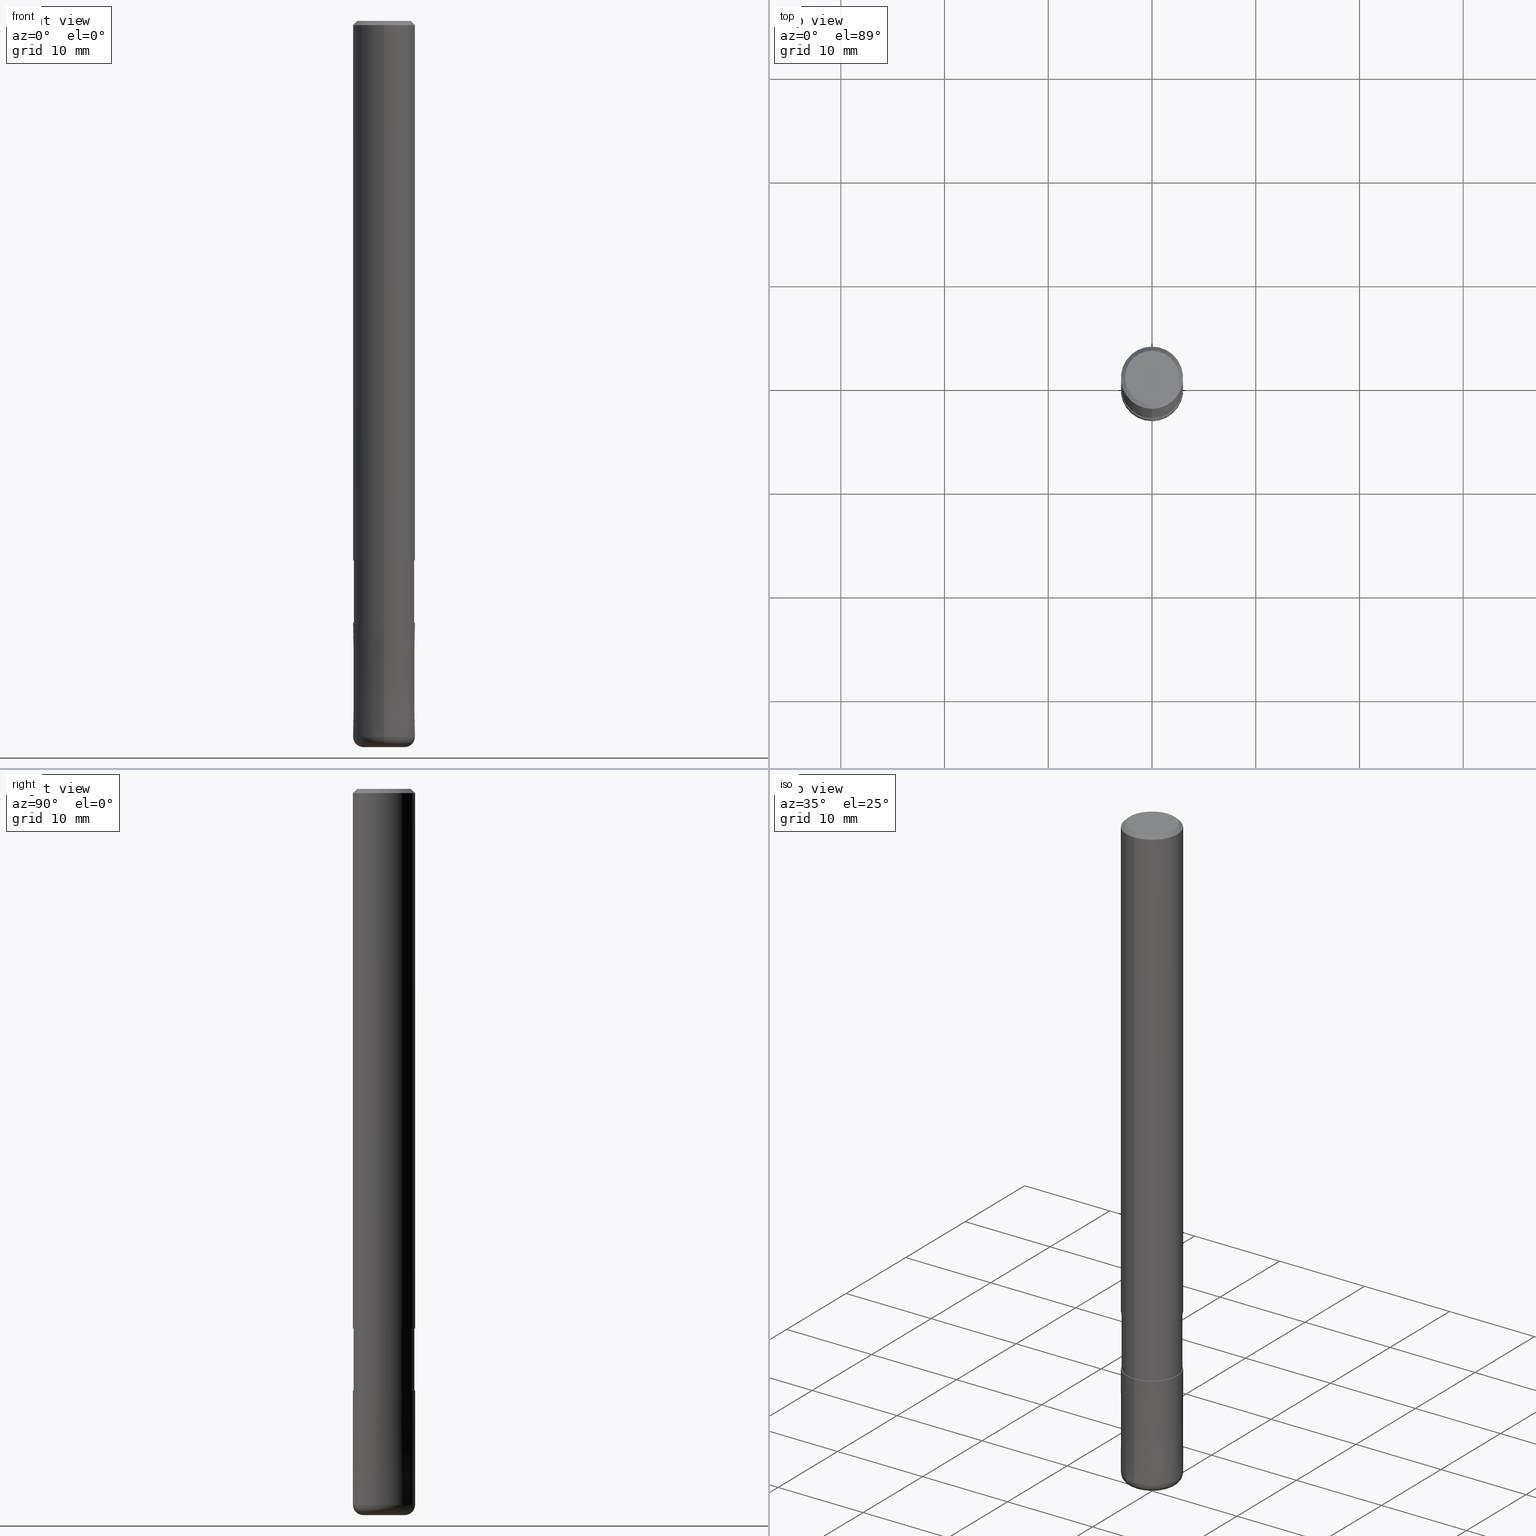
[diagram: canonical four-view strip — front | top / right | iso, engineering-drawing reading convention]
A machine part, canonical four-view strip (front | top / right | iso — engineering-drawing reading convention). The complete STEP part file that produces these views, byte-faithful:
ISO-10303-21;
HEADER;
FILE_DESCRIPTION(('no description'),'unknown implementation level');
FILE_NAME('CXLRS5060-10-18-Huellk.stp','  ',('CIMSOURCE GmbH'),('CADClick - KiM GmbH - www.kimweb.de'),'unknown preprocess','ACIS','unknown authorization');
FILE_SCHEMA(('automotive_design'));
ENDSEC;
DATA;
#1=MECHANICAL_DESIGN_GEOMETRIC_PRESENTATION_REPRESENTATION(' ',(#14,#15,#16,#17,#18,#19,#20,#21,#22,#23,#24,#25,#26,#27,#28,#29,#30,#31,#32,#33,#34,#35,#36,#37,#38,#39,#40,#41,#42,#43,#44,#45,#46,#47,#48,#49,#50,#51,#52,#53,#54,#55,#56,#57,#58,#59,#60,#61,#62,#63,#64,#65,#66,#67,#68,#69,#70,#71,#72,#73,#74,#75,#76,#77,#78,#79,#80,#81,#82,#83,#84,#85,#86,#87,#88,#89,#90,#91,#92,#93,#94,#95,#96,#97),#10);
#2=PRODUCT_DEFINITION_CONTEXT('',#98,'design');
#3=APPLICATION_PROTOCOL_DEFINITION('INTERNATIONAL STANDARD','automotive_design',1994,#98);
#4=PRODUCT_CATEGORY_RELATIONSHIP('NONE','NONE',#99,#100);
#5=SHAPE_DEFINITION_REPRESENTATION(#101,#102);
#6=PRODUCT_DEFINITION_CONTEXT('',#103,'design');
#7=APPLICATION_PROTOCOL_DEFINITION('INTERNATIONAL STANDARD','automotive_design',1994,#103);
#8=PRODUCT_CATEGORY_RELATIONSHIP('NONE','NONE',#104,#105);
#9=SHAPE_DEFINITION_REPRESENTATION(#106,#107);
#10= (GEOMETRIC_REPRESENTATION_CONTEXT(3)GLOBAL_UNCERTAINTY_ASSIGNED_CONTEXT((#110))GLOBAL_UNIT_ASSIGNED_CONTEXT((#112,#113,#114))REPRESENTATION_CONTEXT('NONE','WORKSPACE'));
#14=STYLED_ITEM('',(#116),#117);
#15=STYLED_ITEM('',(#118),#119);
#16=STYLED_ITEM('',(#120),#121);
#17=STYLED_ITEM('',(#122),#123);
#18=STYLED_ITEM('',(#124),#125);
#19=STYLED_ITEM('',(#126),#127);
#20=STYLED_ITEM('',(#128),#129);
#21=STYLED_ITEM('',(#130),#131);
#22=STYLED_ITEM('',(#132),#133);
#23=STYLED_ITEM('',(#134),#135);
#24=STYLED_ITEM('',(#136),#137);
#25=STYLED_ITEM('',(#138),#139);
#26=STYLED_ITEM('',(#140),#141);
#27=STYLED_ITEM('',(#142),#143);
#28=STYLED_ITEM('',(#144),#145);
#29=STYLED_ITEM('',(#146),#147);
#30=STYLED_ITEM('',(#148),#149);
#31=STYLED_ITEM('',(#150),#151);
#32=STYLED_ITEM('',(#152),#153);
#33=STYLED_ITEM('',(#154),#155);
#34=STYLED_ITEM('',(#156),#157);
#35=STYLED_ITEM('',(#158),#159);
#36=STYLED_ITEM('',(#160),#161);
#37=STYLED_ITEM('',(#162),#163);
#38=STYLED_ITEM('',(#164),#165);
#39=STYLED_ITEM('',(#166),#167);
#40=STYLED_ITEM('',(#168),#169);
#41=STYLED_ITEM('',(#170),#171);
#42=STYLED_ITEM('',(#172),#173);
#43=STYLED_ITEM('',(#174),#175);
#44=STYLED_ITEM('',(#176),#177);
#45=STYLED_ITEM('',(#178),#179);
#46=STYLED_ITEM('',(#180),#181);
#47=STYLED_ITEM('',(#182),#183);
#48=STYLED_ITEM('',(#184),#185);
#49=STYLED_ITEM('',(#186),#187);
#50=STYLED_ITEM('',(#188),#189);
#51=STYLED_ITEM('',(#190),#191);
#52=STYLED_ITEM('',(#192),#193);
#53=STYLED_ITEM('',(#194),#195);
#54=STYLED_ITEM('',(#196),#197);
#55=STYLED_ITEM('',(#198),#199);
#56=STYLED_ITEM('',(#200),#201);
#57=STYLED_ITEM('',(#202),#203);
#58=STYLED_ITEM('',(#204),#205);
#59=STYLED_ITEM('',(#206),#207);
#60=STYLED_ITEM('',(#208),#209);
#61=STYLED_ITEM('',(#210),#211);
#62=STYLED_ITEM('',(#212),#213);
#63=STYLED_ITEM('',(#214),#215);
#64=STYLED_ITEM('',(#216),#217);
#65=STYLED_ITEM('',(#218),#219);
#66=STYLED_ITEM('',(#220),#221);
#67=STYLED_ITEM('',(#222),#223);
#68=STYLED_ITEM('',(#224),#225);
#69=STYLED_ITEM('',(#226),#227);
#70=STYLED_ITEM('',(#228),#229);
#71=STYLED_ITEM('',(#230),#231);
#72=STYLED_ITEM('',(#232),#233);
#73=STYLED_ITEM('',(#234),#235);
#74=STYLED_ITEM('',(#236),#237);
#75=STYLED_ITEM('',(#238),#239);
#76=STYLED_ITEM('',(#240),#241);
#77=STYLED_ITEM('',(#242),#243);
#78=STYLED_ITEM('',(#244),#245);
#79=STYLED_ITEM('',(#246),#247);
#80=STYLED_ITEM('',(#248),#249);
#81=STYLED_ITEM('',(#250),#251);
#82=STYLED_ITEM('',(#252),#253);
#83=STYLED_ITEM('',(#254),#255);
#84=STYLED_ITEM('',(#256),#257);
#85=STYLED_ITEM('',(#258),#259);
#86=STYLED_ITEM('',(#260),#261);
#87=STYLED_ITEM('',(#262),#263);
#88=STYLED_ITEM('',(#264),#265);
#89=STYLED_ITEM('',(#266),#267);
#90=STYLED_ITEM('',(#268),#269);
#91=STYLED_ITEM('',(#270),#271);
#92=STYLED_ITEM('',(#272),#273);
#93=STYLED_ITEM('',(#274),#275);
#94=STYLED_ITEM('',(#276),#277);
#95=STYLED_ITEM('',(#278),#279);
#96=STYLED_ITEM('',(#280),#281);
#97=STYLED_ITEM('',(#282),#283);
#98=APPLICATION_CONTEXT(' ');
#99=PRODUCT_CATEGORY('part','NONE');
#100=PRODUCT_RELATED_PRODUCT_CATEGORY('detail',' ',(#284));
#101=PRODUCT_DEFINITION_SHAPE('NONE','NONE',#285);
#102=ADVANCED_BREP_SHAPE_REPRESENTATION('1',(#241,#286),#10);
#103=APPLICATION_CONTEXT(' ');
#104=PRODUCT_CATEGORY('part','NONE');
#105=PRODUCT_RELATED_PRODUCT_CATEGORY('detail',' ',(#287));
#106=PRODUCT_DEFINITION_SHAPE('NONE','NONE',#288);
#107=ADVANCED_BREP_SHAPE_REPRESENTATION('2',(#259,#289),#10);
#110=UNCERTAINTY_MEASURE_WITH_UNIT(LENGTH_MEASURE(1.0E-006),#112,'','');
#112= (CONVERSION_BASED_UNIT('MILLIMETRE',#292)LENGTH_UNIT()NAMED_UNIT(#295));
#113= (NAMED_UNIT(#297)PLANE_ANGLE_UNIT()SI_UNIT($,.RADIAN.));
#114= (NAMED_UNIT(#297)SOLID_ANGLE_UNIT()SI_UNIT($,.STERADIAN.));
#116=PRESENTATION_STYLE_ASSIGNMENT((#303));
#117=ADVANCED_FACE('',(#304),#305,.T.);
#118=PRESENTATION_STYLE_ASSIGNMENT((#306));
#119=EDGE_CURVE('',#123,#187,#307,.T.);
#120=PRESENTATION_STYLE_ASSIGNMENT((#308));
#121=ADVANCED_FACE('',(#309),#310,.T.);
#122=PRESENTATION_STYLE_ASSIGNMENT((#311));
#123=VERTEX_POINT('',#312);
#124=PRESENTATION_STYLE_ASSIGNMENT((#313));
#125=ADVANCED_FACE('',(#314),#315,.T.);
#126=PRESENTATION_STYLE_ASSIGNMENT((#316));
#127=ADVANCED_FACE('',(#317),#318,.T.);
#128=PRESENTATION_STYLE_ASSIGNMENT((#319));
#129=EDGE_CURVE('',#223,#247,#320,.T.);
#130=PRESENTATION_STYLE_ASSIGNMENT((#321));
#131=EDGE_CURVE('',#217,#231,#322,.T.);
#132=PRESENTATION_STYLE_ASSIGNMENT((#323));
#133=EDGE_CURVE('',#123,#225,#324,.T.);
#134=PRESENTATION_STYLE_ASSIGNMENT((#325));
#135=EDGE_CURVE('',#153,#211,#326,.T.);
#136=PRESENTATION_STYLE_ASSIGNMENT((#327));
#137=VERTEX_POINT('',#328);
#138=PRESENTATION_STYLE_ASSIGNMENT((#329));
#139=EDGE_CURVE('',#281,#269,#330,.T.);
#140=PRESENTATION_STYLE_ASSIGNMENT((#331));
#141=ADVANCED_FACE('',(#332),#333,.T.);
#142=PRESENTATION_STYLE_ASSIGNMENT((#334));
#143=EDGE_CURVE('',#137,#165,#335,.T.);
#144=PRESENTATION_STYLE_ASSIGNMENT((#336));
#145=ADVANCED_FACE('',(#337),#338,.T.);
#146=PRESENTATION_STYLE_ASSIGNMENT((#339));
#147=ADVANCED_FACE('',(#340,#341),#342,.T.);
#148=PRESENTATION_STYLE_ASSIGNMENT((#343));
#149=VERTEX_POINT('',#344);
#150=PRESENTATION_STYLE_ASSIGNMENT((#345));
#151=VERTEX_POINT('',#346);
#152=PRESENTATION_STYLE_ASSIGNMENT((#347));
#153=VERTEX_POINT('',#348);
#154=PRESENTATION_STYLE_ASSIGNMENT((#349));
#155=EDGE_CURVE('',#279,#149,#350,.T.);
#156=PRESENTATION_STYLE_ASSIGNMENT((#351));
#157=EDGE_CURVE('',#165,#137,#352,.T.);
#158=PRESENTATION_STYLE_ASSIGNMENT((#353));
#159=ADVANCED_FACE('',(#354),#355,.T.);
#160=PRESENTATION_STYLE_ASSIGNMENT((#356));
#161=EDGE_CURVE('',#261,#151,#357,.T.);
#162=PRESENTATION_STYLE_ASSIGNMENT((#358));
#163=EDGE_CURVE('',#149,#279,#359,.T.);
#164=PRESENTATION_STYLE_ASSIGNMENT((#360));
#165=VERTEX_POINT('',#361);
#166=PRESENTATION_STYLE_ASSIGNMENT((#362));
#167=EDGE_CURVE('',#223,#231,#363,.T.);
#168=PRESENTATION_STYLE_ASSIGNMENT((#364));
#169=VERTEX_POINT('',#365);
#170=PRESENTATION_STYLE_ASSIGNMENT((#366));
#171=EDGE_CURVE('',#169,#257,#367,.T.);
#172=PRESENTATION_STYLE_ASSIGNMENT((#368));
#173=EDGE_CURVE('',#151,#261,#369,.T.);
#174=PRESENTATION_STYLE_ASSIGNMENT((#370));
#175=ADVANCED_FACE('',(#371),#372,.F.);
#176=PRESENTATION_STYLE_ASSIGNMENT((#373));
#177=ADVANCED_FACE('',(#374),#375,.T.);
#178=PRESENTATION_STYLE_ASSIGNMENT((#376));
#179=EDGE_CURVE('',#257,#261,#377,.T.);
#180=PRESENTATION_STYLE_ASSIGNMENT((#378));
#181=ADVANCED_FACE('',(#379,#380),#381,.T.);
#182=PRESENTATION_STYLE_ASSIGNMENT((#382));
#183=VERTEX_POINT('',#383);
#184=PRESENTATION_STYLE_ASSIGNMENT((#384));
#185=EDGE_CURVE('',#239,#183,#385,.T.);
#186=PRESENTATION_STYLE_ASSIGNMENT((#386));
#187=VERTEX_POINT('',#387);
#188=PRESENTATION_STYLE_ASSIGNMENT((#388));
#189=EDGE_CURVE('',#247,#223,#389,.T.);
#190=PRESENTATION_STYLE_ASSIGNMENT((#390));
#191=EDGE_CURVE('',#201,#225,#391,.T.);
#192=PRESENTATION_STYLE_ASSIGNMENT((#392));
#193=EDGE_CURVE('',#217,#247,#393,.T.);
#194=PRESENTATION_STYLE_ASSIGNMENT((#394));
#195=ADVANCED_FACE('',(#395),#396,.T.);
#196=PRESENTATION_STYLE_ASSIGNMENT((#397));
#197=ADVANCED_FACE('',(#398),#399,.T.);
#198=PRESENTATION_STYLE_ASSIGNMENT((#400));
#199=ADVANCED_FACE('',(#401,#402),#403,.T.);
#200=PRESENTATION_STYLE_ASSIGNMENT((#404));
#201=VERTEX_POINT('',#405);
#202=PRESENTATION_STYLE_ASSIGNMENT((#406));
#203=VERTEX_POINT('',#407);
#204=PRESENTATION_STYLE_ASSIGNMENT((#408));
#205=EDGE_CURVE('',#203,#225,#409,.T.);
#206=PRESENTATION_STYLE_ASSIGNMENT((#410));
#207=VERTEX_POINT('',#411);
#208=PRESENTATION_STYLE_ASSIGNMENT((#412));
#209=EDGE_CURVE('',#207,#203,#413,.T.);
#210=PRESENTATION_STYLE_ASSIGNMENT((#414));
#211=VERTEX_POINT('',#415);
#212=PRESENTATION_STYLE_ASSIGNMENT((#416));
#213=EDGE_CURVE('',#211,#169,#417,.T.);
#214=PRESENTATION_STYLE_ASSIGNMENT((#418));
#215=EDGE_CURVE('',#153,#257,#419,.T.);
#216=PRESENTATION_STYLE_ASSIGNMENT((#420));
#217=VERTEX_POINT('',#421);
#218=PRESENTATION_STYLE_ASSIGNMENT((#422));
#219=ADVANCED_FACE('',(#423),#424,.F.);
#220=PRESENTATION_STYLE_ASSIGNMENT((#425));
#221=EDGE_CURVE('',#269,#239,#426,.T.);
#222=PRESENTATION_STYLE_ASSIGNMENT((#427));
#223=VERTEX_POINT('',#428);
#224=PRESENTATION_STYLE_ASSIGNMENT((#429));
#225=VERTEX_POINT('',#430);
#226=PRESENTATION_STYLE_ASSIGNMENT((#431));
#227=ADVANCED_FACE('',(#432),#433,.T.);
#228=PRESENTATION_STYLE_ASSIGNMENT((#434));
#229=EDGE_CURVE('',#187,#201,#435,.T.);
#230=PRESENTATION_STYLE_ASSIGNMENT((#436));
#231=VERTEX_POINT('',#437);
#232=PRESENTATION_STYLE_ASSIGNMENT((#438));
#233=ADVANCED_FACE('',(#439),#440,.T.);
#234=PRESENTATION_STYLE_ASSIGNMENT((#441));
#235=EDGE_CURVE('',#149,#137,#442,.T.);
#236=PRESENTATION_STYLE_ASSIGNMENT((#443));
#237=EDGE_CURVE('',#165,#279,#444,.T.);
#238=PRESENTATION_STYLE_ASSIGNMENT((#445));
#239=VERTEX_POINT('',#446);
#240=PRESENTATION_STYLE_ASSIGNMENT((#447));
#241=MANIFOLD_SOLID_BREP('1',#448);
#242=PRESENTATION_STYLE_ASSIGNMENT((#449));
#243=EDGE_CURVE('',#151,#153,#450,.T.);
#244=PRESENTATION_STYLE_ASSIGNMENT((#451));
#245=EDGE_CURVE('',#281,#183,#452,.T.);
#246=PRESENTATION_STYLE_ASSIGNMENT((#453));
#247=VERTEX_POINT('',#454);
#248=PRESENTATION_STYLE_ASSIGNMENT((#455));
#249=EDGE_CURVE('',#239,#269,#456,.T.);
#250=PRESENTATION_STYLE_ASSIGNMENT((#457));
#251=ADVANCED_FACE('',(#458),#459,.T.);
#252=PRESENTATION_STYLE_ASSIGNMENT((#460));
#253=EDGE_CURVE('',#257,#153,#461,.T.);
#254=PRESENTATION_STYLE_ASSIGNMENT((#462));
#255=EDGE_CURVE('',#201,#187,#463,.T.);
#256=PRESENTATION_STYLE_ASSIGNMENT((#464));
#257=VERTEX_POINT('',#465);
#258=PRESENTATION_STYLE_ASSIGNMENT((#466));
#259=MANIFOLD_SOLID_BREP('2',#467);
#260=PRESENTATION_STYLE_ASSIGNMENT((#468));
#261=VERTEX_POINT('',#469);
#262=PRESENTATION_STYLE_ASSIGNMENT((#470));
#263=EDGE_CURVE('',#231,#217,#471,.T.);
#264=PRESENTATION_STYLE_ASSIGNMENT((#472));
#265=EDGE_CURVE('',#225,#123,#473,.T.);
#266=PRESENTATION_STYLE_ASSIGNMENT((#474));
#267=ADVANCED_FACE('',(#475,#476),#477,.T.);
#268=PRESENTATION_STYLE_ASSIGNMENT((#478));
#269=VERTEX_POINT('',#479);
#270=PRESENTATION_STYLE_ASSIGNMENT((#480));
#271=EDGE_CURVE('',#203,#207,#481,.T.);
#272=PRESENTATION_STYLE_ASSIGNMENT((#482));
#273=EDGE_CURVE('',#123,#207,#483,.T.);
#274=PRESENTATION_STYLE_ASSIGNMENT((#484));
#275=ADVANCED_FACE('',(#485),#486,.T.);
#276=PRESENTATION_STYLE_ASSIGNMENT((#487));
#277=EDGE_CURVE('',#183,#281,#488,.T.);
#278=PRESENTATION_STYLE_ASSIGNMENT((#489));
#279=VERTEX_POINT('',#490);
#280=PRESENTATION_STYLE_ASSIGNMENT((#491));
#281=VERTEX_POINT('',#492);
#282=PRESENTATION_STYLE_ASSIGNMENT((#493));
#283=EDGE_CURVE('',#169,#211,#494,.T.);
#284=PRODUCT('1','1','PART-1-DESC',(#495));
#285=PRODUCT_DEFINITION('NONE','NONE',#496,#2);
#286=AXIS2_PLACEMENT_3D('',#497,#498,#499);
#287=PRODUCT('2','2','PART-2-DESC',(#500));
#288=PRODUCT_DEFINITION('NONE','NONE',#501,#6);
#289=AXIS2_PLACEMENT_3D('',#502,#503,#504);
#292=LENGTH_MEASURE_WITH_UNIT(LENGTH_MEASURE(1.0),#505);
#295=DIMENSIONAL_EXPONENTS(1.0,0.0,0.0,0.0,0.0,0.0,0.0);
#297=DIMENSIONAL_EXPONENTS(0.0,0.0,0.0,0.0,0.0,0.0,0.0);
#303=SURFACE_STYLE_USAGE(.BOTH.,#506);
#304=FACE_OUTER_BOUND('',#507,.T.);
#305=CONICAL_SURFACE('',#508,2.99995,9.09090909067784E-006);
#306=CURVE_STYLE('',#509,POSITIVE_LENGTH_MEASURE(1.0E-006),#510);
#307=CIRCLE('',#511,1.0);
#308=SURFACE_STYLE_USAGE(.BOTH.,#512);
#309=FACE_OUTER_BOUND('',#513,.T.);
#310=CYLINDRICAL_SURFACE('',#514,2.92495);
#311=POINT_STYLE(' ',#515,POSITIVE_LENGTH_MEASURE(1.0E-006),#516);
#312=CARTESIAN_POINT('',(3.67381906146713E-016,-3.0,-69.0));
#313=SURFACE_STYLE_USAGE(.BOTH.,#517);
#314=FACE_OUTER_BOUND('',#518,.T.);
#315=TOROIDAL_SURFACE('',#519,2.0,1.0);
#316=SURFACE_STYLE_USAGE(.BOTH.,#520);
#317=FACE_OUTER_BOUND('',#521,.T.);
#318=CONICAL_SURFACE('',#522,2.8,0.78539816339745);
#319=CURVE_STYLE('',#523,POSITIVE_LENGTH_MEASURE(1.0E-006),#524);
#320=CIRCLE('',#525,1.35);
#321=CURVE_STYLE('',#526,POSITIVE_LENGTH_MEASURE(1.0E-006),#527);
#322=CIRCLE('',#528,1.35);
#323=CURVE_STYLE('',#529,POSITIVE_LENGTH_MEASURE(1.0E-006),#530);
#324=CIRCLE('',#531,3.0);
#325=CURVE_STYLE('',#532,POSITIVE_LENGTH_MEASURE(1.0E-006),#533);
#326=LINE('',#534,#535);
#327=POINT_STYLE(' ',#536,POSITIVE_LENGTH_MEASURE(1.0E-006),#537);
#328=CARTESIAN_POINT('',(0.0,2.92495,-58.0));
#329=CURVE_STYLE('',#538,POSITIVE_LENGTH_MEASURE(1.0E-006),#539);
#330=LINE('',#540,#541);
#331=SURFACE_STYLE_USAGE(.BOTH.,#542);
#332=FACE_OUTER_BOUND('',#543,.T.);
#333=CYLINDRICAL_SURFACE('',#544,1.35);
#334=CURVE_STYLE('',#545,POSITIVE_LENGTH_MEASURE(1.0E-006),#546);
#335=CIRCLE('',#547,2.92495);
#336=SURFACE_STYLE_USAGE(.BOTH.,#548);
#337=FACE_OUTER_BOUND('',#549,.T.);
#338=CYLINDRICAL_SURFACE('',#550,2.92495);
#339=SURFACE_STYLE_USAGE(.BOTH.,#551);
#340=FACE_OUTER_BOUND('',#552,.T.);
#341=FACE_BOUND('',#553,.T.);
#342=PLANE('',#554);
#343=POINT_STYLE(' ',#555,POSITIVE_LENGTH_MEASURE(1.0E-006),#556);
#344=CARTESIAN_POINT('',(0.0,2.92495,-52.0));
#345=POINT_STYLE(' ',#557,POSITIVE_LENGTH_MEASURE(1.0E-006),#558);
#346=CARTESIAN_POINT('',(3.67381906146713E-016,-3.0,-52.0));
#347=POINT_STYLE(' ',#559,POSITIVE_LENGTH_MEASURE(1.0E-006),#560);
#348=CARTESIAN_POINT('',(3.67381906146713E-016,-3.0,-0.399999999999999));
#349=CURVE_STYLE('',#561,POSITIVE_LENGTH_MEASURE(1.0E-006),#562);
#350=CIRCLE('',#563,2.92495);
#351=CURVE_STYLE('',#564,POSITIVE_LENGTH_MEASURE(1.0E-006),#565);
#352=CIRCLE('',#566,2.92495);
#353=SURFACE_STYLE_USAGE(.BOTH.,#567);
#354=FACE_OUTER_BOUND('',#568,.T.);
#355=CYLINDRICAL_SURFACE('',#569,3.0);
#356=CURVE_STYLE('',#570,POSITIVE_LENGTH_MEASURE(1.0E-006),#571);
#357=CIRCLE('',#572,3.0);
#358=CURVE_STYLE('',#573,POSITIVE_LENGTH_MEASURE(1.0E-006),#574);
#359=CIRCLE('',#575,2.92495);
#360=POINT_STYLE(' ',#576,POSITIVE_LENGTH_MEASURE(1.0E-006),#577);
#361=CARTESIAN_POINT('',(3.58191235461276E-016,-2.92495,-58.0));
#362=CURVE_STYLE('',#578,POSITIVE_LENGTH_MEASURE(1.0E-006),#579);
#363=LINE('',#580,#581);
#364=POINT_STYLE(' ',#582,POSITIVE_LENGTH_MEASURE(1.0E-006),#583);
#365=CARTESIAN_POINT('',(0.0,2.6,0.0));
#366=CURVE_STYLE('',#584,POSITIVE_LENGTH_MEASURE(1.0E-006),#585);
#367=LINE('',#586,#587);
#368=CURVE_STYLE('',#588,POSITIVE_LENGTH_MEASURE(1.0E-006),#589);
#369=CIRCLE('',#590,3.0);
#370=SURFACE_STYLE_USAGE(.BOTH.,#591);
#371=FACE_OUTER_BOUND('',#592,.T.);
#372=CYLINDRICAL_SURFACE('',#593,1.35);
#373=SURFACE_STYLE_USAGE(.BOTH.,#594);
#374=FACE_OUTER_BOUND('',#595,.T.);
#375=TOROIDAL_SURFACE('',#596,2.0,1.0);
#376=CURVE_STYLE('',#597,POSITIVE_LENGTH_MEASURE(1.0E-006),#598);
#377=LINE('',#599,#600);
#378=SURFACE_STYLE_USAGE(.BOTH.,#601);
#379=FACE_BOUND('',#602,.T.);
#380=FACE_OUTER_BOUND('',#603,.T.);
#381=PLANE('',#604);
#382=POINT_STYLE(' ',#605,POSITIVE_LENGTH_MEASURE(1.0E-006),#606);
#383=CARTESIAN_POINT('',(1.65321857766021E-016,-1.35,-58.0));
#384=CURVE_STYLE('',#607,POSITIVE_LENGTH_MEASURE(1.0E-006),#608);
#385=LINE('',#609,#610);
#386=POINT_STYLE(' ',#611,POSITIVE_LENGTH_MEASURE(1.0E-006),#612);
#387=CARTESIAN_POINT('',(2.44921270764475E-016,-2.0,-70.0));
#388=CURVE_STYLE('',#613,POSITIVE_LENGTH_MEASURE(1.0E-006),#614);
#389=CIRCLE('',#615,1.35);
#390=CURVE_STYLE('',#616,POSITIVE_LENGTH_MEASURE(1.0E-006),#617);
#391=CIRCLE('',#618,1.0);
#392=CURVE_STYLE('',#619,POSITIVE_LENGTH_MEASURE(1.0E-006),#620);
#393=LINE('',#621,#622);
#394=SURFACE_STYLE_USAGE(.BOTH.,#623);
#395=FACE_OUTER_BOUND('',#624,.T.);
#396=PLANE('',#625);
#397=SURFACE_STYLE_USAGE(.BOTH.,#626);
#398=FACE_OUTER_BOUND('',#627,.T.);
#399=CONICAL_SURFACE('',#628,2.99995,9.09090909067784E-006);
#400=SURFACE_STYLE_USAGE(.BOTH.,#629);
#401=FACE_OUTER_BOUND('',#630,.T.);
#402=FACE_BOUND('',#631,.T.);
#403=PLANE('',#632);
#404=POINT_STYLE(' ',#633,POSITIVE_LENGTH_MEASURE(1.0E-006),#634);
#405=CARTESIAN_POINT('',(0.0,2.0,-70.0));
#406=POINT_STYLE(' ',#635,POSITIVE_LENGTH_MEASURE(1.0E-006),#636);
#407=CARTESIAN_POINT('',(0.0,2.9999,-58.0));
#408=CURVE_STYLE('',#637,POSITIVE_LENGTH_MEASURE(1.0E-006),#638);
#409=LINE('',#639,#640);
#410=POINT_STYLE(' ',#641,POSITIVE_LENGTH_MEASURE(1.0E-006),#642);
#411=CARTESIAN_POINT('',(3.67369660083175E-016,-2.9999,-58.0));
#412=CURVE_STYLE('',#643,POSITIVE_LENGTH_MEASURE(1.0E-006),#644);
#413=CIRCLE('',#645,2.9999);
#414=POINT_STYLE(' ',#646,POSITIVE_LENGTH_MEASURE(1.0E-006),#647);
#415=CARTESIAN_POINT('',(3.18397651993818E-016,-2.6,0.0));
#416=CURVE_STYLE('',#648,POSITIVE_LENGTH_MEASURE(1.0E-006),#649);
#417=CIRCLE('',#650,2.6);
#418=CURVE_STYLE('',#651,POSITIVE_LENGTH_MEASURE(1.0E-006),#652);
#419=CIRCLE('',#653,3.0);
#420=POINT_STYLE(' ',#654,POSITIVE_LENGTH_MEASURE(1.0E-006),#655);
#421=CARTESIAN_POINT('',(1.65321857766021E-016,-1.35,-69.9));
#422=SURFACE_STYLE_USAGE(.BOTH.,#656);
#423=FACE_OUTER_BOUND('',#657,.T.);
#424=CYLINDRICAL_SURFACE('',#658,1.35);
#425=CURVE_STYLE('',#659,POSITIVE_LENGTH_MEASURE(1.0E-006),#660);
#426=CIRCLE('',#661,1.35);
#427=POINT_STYLE(' ',#662,POSITIVE_LENGTH_MEASURE(1.0E-006),#663);
#428=CARTESIAN_POINT('',(0.0,1.35,-58.0));
#429=POINT_STYLE(' ',#664,POSITIVE_LENGTH_MEASURE(1.0E-006),#665);
#430=CARTESIAN_POINT('',(0.0,3.0,-69.0));
#431=SURFACE_STYLE_USAGE(.BOTH.,#666);
#432=FACE_OUTER_BOUND('',#667,.T.);
#433=CONICAL_SURFACE('',#668,2.8,0.78539816339745);
#434=CURVE_STYLE('',#669,POSITIVE_LENGTH_MEASURE(1.0E-006),#670);
#435=CIRCLE('',#671,2.0);
#436=POINT_STYLE(' ',#672,POSITIVE_LENGTH_MEASURE(1.0E-006),#673);
#437=CARTESIAN_POINT('',(0.0,1.35,-69.9));
#438=SURFACE_STYLE_USAGE(.BOTH.,#674);
#439=FACE_OUTER_BOUND('',#675,.T.);
#440=CYLINDRICAL_SURFACE('',#676,3.0);
#441=CURVE_STYLE('',#677,POSITIVE_LENGTH_MEASURE(1.0E-006),#678);
#442=LINE('',#679,#680);
#443=CURVE_STYLE('',#681,POSITIVE_LENGTH_MEASURE(1.0E-006),#682);
#444=LINE('',#683,#684);
#445=POINT_STYLE(' ',#685,POSITIVE_LENGTH_MEASURE(1.0E-006),#686);
#446=CARTESIAN_POINT('',(1.65321857766021E-016,-1.35,-70.0));
#447=SURFACE_STYLE_USAGE(.BOTH.,#687);
#448=CLOSED_SHELL('',(#141,#121,#159,#127,#147,#195,#227,#233,#145,#267,#251,#275));
#449=CURVE_STYLE('',#688,POSITIVE_LENGTH_MEASURE(1.0E-006),#689);
#450=LINE('',#690,#691);
#451=CURVE_STYLE('',#692,POSITIVE_LENGTH_MEASURE(1.0E-006),#693);
#452=CIRCLE('',#694,1.35);
#453=POINT_STYLE(' ',#695,POSITIVE_LENGTH_MEASURE(1.0E-006),#696);
#454=CARTESIAN_POINT('',(1.65321857766021E-016,-1.35,-58.0));
#455=CURVE_STYLE('',#697,POSITIVE_LENGTH_MEASURE(1.0E-006),#698);
#456=CIRCLE('',#699,1.35);
#457=SURFACE_STYLE_USAGE(.BOTH.,#700);
#458=FACE_OUTER_BOUND('',#701,.T.);
#459=CYLINDRICAL_SURFACE('',#702,1.35);
#460=CURVE_STYLE('',#703,POSITIVE_LENGTH_MEASURE(1.0E-006),#704);
#461=CIRCLE('',#705,3.0);
#462=CURVE_STYLE('',#706,POSITIVE_LENGTH_MEASURE(1.0E-006),#707);
#463=CIRCLE('',#708,2.0);
#464=POINT_STYLE(' ',#709,POSITIVE_LENGTH_MEASURE(1.0E-006),#710);
#465=CARTESIAN_POINT('',(0.0,3.0,-0.399999999999999));
#466=SURFACE_STYLE_USAGE(.BOTH.,#711);
#467=CLOSED_SHELL('',(#175,#125,#197,#199,#117,#177,#181,#219));
#468=POINT_STYLE(' ',#712,POSITIVE_LENGTH_MEASURE(1.0E-006),#713);
#469=CARTESIAN_POINT('',(0.0,3.0,-52.0));
#470=CURVE_STYLE('',#714,POSITIVE_LENGTH_MEASURE(1.0E-006),#715);
#471=CIRCLE('',#716,1.35);
#472=CURVE_STYLE('',#717,POSITIVE_LENGTH_MEASURE(1.0E-006),#718);
#473=CIRCLE('',#719,3.0);
#474=SURFACE_STYLE_USAGE(.BOTH.,#720);
#475=FACE_BOUND('',#721,.T.);
#476=FACE_OUTER_BOUND('',#722,.T.);
#477=PLANE('',#723);
#478=POINT_STYLE(' ',#724,POSITIVE_LENGTH_MEASURE(1.0E-006),#725);
#479=CARTESIAN_POINT('',(0.0,1.35,-70.0));
#480=CURVE_STYLE('',#726,POSITIVE_LENGTH_MEASURE(1.0E-006),#727);
#481=CIRCLE('',#728,2.9999);
#482=CURVE_STYLE('',#729,POSITIVE_LENGTH_MEASURE(1.0E-006),#730);
#483=LINE('',#731,#732);
#484=SURFACE_STYLE_USAGE(.BOTH.,#733);
#485=FACE_OUTER_BOUND('',#734,.T.);
#486=PLANE('',#735);
#487=CURVE_STYLE('',#736,POSITIVE_LENGTH_MEASURE(1.0E-006),#737);
#488=CIRCLE('',#738,1.35);
#489=POINT_STYLE(' ',#739,POSITIVE_LENGTH_MEASURE(1.0E-006),#740);
#490=CARTESIAN_POINT('',(3.58191235461276E-016,-2.92495,-52.0));
#491=POINT_STYLE(' ',#741,POSITIVE_LENGTH_MEASURE(1.0E-006),#742);
#492=CARTESIAN_POINT('',(0.0,1.35,-58.0));
#493=CURVE_STYLE('',#743,POSITIVE_LENGTH_MEASURE(1.0E-006),#744);
#494=CIRCLE('',#745,2.6);
#495=PRODUCT_CONTEXT('',#98,'mechanical');
#496=PRODUCT_DEFINITION_FORMATION_WITH_SPECIFIED_SOURCE(' ','NONE',#284,.NOT_KNOWN.);
#497=CARTESIAN_POINT('',(0.0,0.0,0.0));
#498=DIRECTION('',(0.0,0.0,1.0));
#499=DIRECTION('',(1.0,0.0,0.0));
#500=PRODUCT_CONTEXT('',#103,'mechanical');
#501=PRODUCT_DEFINITION_FORMATION_WITH_SPECIFIED_SOURCE(' ','NONE',#287,.NOT_KNOWN.);
#502=CARTESIAN_POINT('',(0.0,0.0,0.0));
#503=DIRECTION('',(0.0,0.0,1.0));
#504=DIRECTION('',(1.0,0.0,0.0));
#505= (NAMED_UNIT(#295)LENGTH_UNIT()SI_UNIT(.MILLI.,.METRE.));
#506=SURFACE_SIDE_STYLE('',(#747));
#507=EDGE_LOOP('',(#748,#749,#750,#751));
#508=AXIS2_PLACEMENT_3D('',#752,#753,#754);
#509=DRAUGHTING_PRE_DEFINED_CURVE_FONT('continuous');
#510=COLOUR_RGB('',0.800000011920929,0.800000011920929,0.800000011920929);
#511=AXIS2_PLACEMENT_3D('',#755,#756,#757);
#512=SURFACE_SIDE_STYLE('',(#758));
#513=EDGE_LOOP('',(#759,#760,#761,#762));
#514=AXIS2_PLACEMENT_3D('',#763,#764,#765);
#515=PRE_DEFINED_MARKER('');
#516=COLOUR_RGB('',0.800000011920929,0.800000011920929,0.800000011920929);
#517=SURFACE_SIDE_STYLE('',(#766));
#518=EDGE_LOOP('',(#767,#768,#769,#770));
#519=AXIS2_PLACEMENT_3D('',#771,#772,#773);
#520=SURFACE_SIDE_STYLE('',(#774));
#521=EDGE_LOOP('',(#775,#776,#777,#778));
#522=AXIS2_PLACEMENT_3D('',#779,#780,#781);
#523=DRAUGHTING_PRE_DEFINED_CURVE_FONT('continuous');
#524=COLOUR_RGB('',0.498039215803146,0.498039215803146,0.498039215803146);
#525=AXIS2_PLACEMENT_3D('',#782,#783,#784);
#526=DRAUGHTING_PRE_DEFINED_CURVE_FONT('continuous');
#527=COLOUR_RGB('',0.498039215803146,0.498039215803146,0.498039215803146);
#528=AXIS2_PLACEMENT_3D('',#785,#786,#787);
#529=DRAUGHTING_PRE_DEFINED_CURVE_FONT('continuous');
#530=COLOUR_RGB('',0.800000011920929,0.800000011920929,0.800000011920929);
#531=AXIS2_PLACEMENT_3D('',#788,#789,#790);
#532=DRAUGHTING_PRE_DEFINED_CURVE_FONT('continuous');
#533=COLOUR_RGB('',0.498039215803146,0.498039215803146,0.498039215803146);
#534=CARTESIAN_POINT('',(3.42889779070266E-016,-2.8,-0.200000000000003));
#535=VECTOR('',#791,1.0);
#536=PRE_DEFINED_MARKER('');
#537=COLOUR_RGB('',0.498039215803146,0.498039215803146,0.498039215803146);
#538=DRAUGHTING_PRE_DEFINED_CURVE_FONT('continuous');
#539=COLOUR_RGB('',0.800000011920929,0.800000011920929,0.800000011920929);
#540=CARTESIAN_POINT('',(-1.65321857766021E-016,1.35,-64.0));
#541=VECTOR('',#792,1.0);
#542=SURFACE_SIDE_STYLE('',(#793));
#543=EDGE_LOOP('',(#794,#795,#796,#797));
#544=AXIS2_PLACEMENT_3D('',#798,#799,#800);
#545=DRAUGHTING_PRE_DEFINED_CURVE_FONT('continuous');
#546=COLOUR_RGB('',0.498039215803146,0.498039215803146,0.498039215803146);
#547=AXIS2_PLACEMENT_3D('',#801,#802,#803);
#548=SURFACE_SIDE_STYLE('',(#804));
#549=EDGE_LOOP('',(#805,#806,#807,#808));
#550=AXIS2_PLACEMENT_3D('',#809,#810,#811);
#551=SURFACE_SIDE_STYLE('',(#812));
#552=EDGE_LOOP('',(#813,#814));
#553=EDGE_LOOP('',(#815,#816));
#554=AXIS2_PLACEMENT_3D('',#817,#818,#819);
#555=PRE_DEFINED_MARKER('');
#556=COLOUR_RGB('',0.498039215803146,0.498039215803146,0.498039215803146);
#557=PRE_DEFINED_MARKER('');
#558=COLOUR_RGB('',0.498039215803146,0.498039215803146,0.498039215803146);
#559=PRE_DEFINED_MARKER('');
#560=COLOUR_RGB('',0.498039215803146,0.498039215803146,0.498039215803146);
#561=DRAUGHTING_PRE_DEFINED_CURVE_FONT('continuous');
#562=COLOUR_RGB('',0.498039215803146,0.498039215803146,0.498039215803146);
#563=AXIS2_PLACEMENT_3D('',#820,#821,#822);
#564=DRAUGHTING_PRE_DEFINED_CURVE_FONT('continuous');
#565=COLOUR_RGB('',0.498039215803146,0.498039215803146,0.498039215803146);
#566=AXIS2_PLACEMENT_3D('',#823,#824,#825);
#567=SURFACE_SIDE_STYLE('',(#826));
#568=EDGE_LOOP('',(#827,#828,#829,#830));
#569=AXIS2_PLACEMENT_3D('',#831,#832,#833);
#570=DRAUGHTING_PRE_DEFINED_CURVE_FONT('continuous');
#571=COLOUR_RGB('',0.498039215803146,0.498039215803146,0.498039215803146);
#572=AXIS2_PLACEMENT_3D('',#834,#835,#836);
#573=DRAUGHTING_PRE_DEFINED_CURVE_FONT('continuous');
#574=COLOUR_RGB('',0.498039215803146,0.498039215803146,0.498039215803146);
#575=AXIS2_PLACEMENT_3D('',#837,#838,#839);
#576=PRE_DEFINED_MARKER('');
#577=COLOUR_RGB('',0.498039215803146,0.498039215803146,0.498039215803146);
#578=DRAUGHTING_PRE_DEFINED_CURVE_FONT('continuous');
#579=COLOUR_RGB('',0.498039215803146,0.498039215803146,0.498039215803146);
#580=CARTESIAN_POINT('',(-1.65321857766021E-016,1.35,-63.95));
#581=VECTOR('',#840,1.0);
#582=PRE_DEFINED_MARKER('');
#583=COLOUR_RGB('',0.498039215803146,0.498039215803146,0.498039215803146);
#584=DRAUGHTING_PRE_DEFINED_CURVE_FONT('continuous');
#585=COLOUR_RGB('',0.498039215803146,0.498039215803146,0.498039215803146);
#586=CARTESIAN_POINT('',(-3.42889779070266E-016,2.8,-0.200000000000003));
#587=VECTOR('',#841,1.0);
#588=DRAUGHTING_PRE_DEFINED_CURVE_FONT('continuous');
#589=COLOUR_RGB('',0.498039215803146,0.498039215803146,0.498039215803146);
#590=AXIS2_PLACEMENT_3D('',#842,#843,#844);
#591=SURFACE_SIDE_STYLE('',(#845));
#592=EDGE_LOOP('',(#846,#847,#848,#849));
#593=AXIS2_PLACEMENT_3D('',#850,#851,#852);
#594=SURFACE_SIDE_STYLE('',(#853));
#595=EDGE_LOOP('',(#854,#855,#856,#857));
#596=AXIS2_PLACEMENT_3D('',#858,#859,#860);
#597=DRAUGHTING_PRE_DEFINED_CURVE_FONT('continuous');
#598=COLOUR_RGB('',0.498039215803146,0.498039215803146,0.498039215803146);
#599=CARTESIAN_POINT('',(-3.67381906146713E-016,3.0,-26.2));
#600=VECTOR('',#861,1.0);
#601=SURFACE_SIDE_STYLE('',(#862));
#602=EDGE_LOOP('',(#863,#864));
#603=EDGE_LOOP('',(#865,#866));
#604=AXIS2_PLACEMENT_3D('',#867,#868,#869);
#605=PRE_DEFINED_MARKER('');
#606=COLOUR_RGB('',0.800000011920929,0.800000011920929,0.800000011920929);
#607=DRAUGHTING_PRE_DEFINED_CURVE_FONT('continuous');
#608=COLOUR_RGB('',0.800000011920929,0.800000011920929,0.800000011920929);
#609=CARTESIAN_POINT('',(1.65321857766021E-016,-1.35,-64.0));
#610=VECTOR('',#870,1.0);
#611=PRE_DEFINED_MARKER('');
#612=COLOUR_RGB('',0.800000011920929,0.800000011920929,0.800000011920929);
#613=DRAUGHTING_PRE_DEFINED_CURVE_FONT('continuous');
#614=COLOUR_RGB('',0.498039215803146,0.498039215803146,0.498039215803146);
#615=AXIS2_PLACEMENT_3D('',#871,#872,#873);
#616=DRAUGHTING_PRE_DEFINED_CURVE_FONT('continuous');
#617=COLOUR_RGB('',0.800000011920929,0.800000011920929,0.800000011920929);
#618=AXIS2_PLACEMENT_3D('',#874,#875,#876);
#619=DRAUGHTING_PRE_DEFINED_CURVE_FONT('continuous');
#620=COLOUR_RGB('',0.498039215803146,0.498039215803146,0.498039215803146);
#621=CARTESIAN_POINT('',(1.65321857766021E-016,-1.35,-63.95));
#622=VECTOR('',#877,1.0);
#623=SURFACE_SIDE_STYLE('',(#878));
#624=EDGE_LOOP('',(#879,#880));
#625=AXIS2_PLACEMENT_3D('',#881,#882,#883);
#626=SURFACE_SIDE_STYLE('',(#884));
#627=EDGE_LOOP('',(#885,#886,#887,#888));
#628=AXIS2_PLACEMENT_3D('',#889,#890,#891);
#629=SURFACE_SIDE_STYLE('',(#892));
#630=EDGE_LOOP('',(#893,#894));
#631=EDGE_LOOP('',(#895,#896));
#632=AXIS2_PLACEMENT_3D('',#897,#898,#899);
#633=PRE_DEFINED_MARKER('');
#634=COLOUR_RGB('',0.800000011920929,0.800000011920929,0.800000011920929);
#635=PRE_DEFINED_MARKER('');
#636=COLOUR_RGB('',0.800000011920929,0.800000011920929,0.800000011920929);
#637=DRAUGHTING_PRE_DEFINED_CURVE_FONT('continuous');
#638=COLOUR_RGB('',0.800000011920929,0.800000011920929,0.800000011920929);
#639=CARTESIAN_POINT('',(-3.67375783114944E-016,2.99995,-63.5));
#640=VECTOR('',#900,1.0);
#641=PRE_DEFINED_MARKER('');
#642=COLOUR_RGB('',0.800000011920929,0.800000011920929,0.800000011920929);
#643=DRAUGHTING_PRE_DEFINED_CURVE_FONT('continuous');
#644=COLOUR_RGB('',0.800000011920929,0.800000011920929,0.800000011920929);
#645=AXIS2_PLACEMENT_3D('',#901,#902,#903);
#646=PRE_DEFINED_MARKER('');
#647=COLOUR_RGB('',0.498039215803146,0.498039215803146,0.498039215803146);
#648=DRAUGHTING_PRE_DEFINED_CURVE_FONT('continuous');
#649=COLOUR_RGB('',0.498039215803146,0.498039215803146,0.498039215803146);
#650=AXIS2_PLACEMENT_3D('',#904,#905,#906);
#651=DRAUGHTING_PRE_DEFINED_CURVE_FONT('continuous');
#652=COLOUR_RGB('',0.498039215803146,0.498039215803146,0.498039215803146);
#653=AXIS2_PLACEMENT_3D('',#907,#908,#909);
#654=PRE_DEFINED_MARKER('');
#655=COLOUR_RGB('',0.498039215803146,0.498039215803146,0.498039215803146);
#656=SURFACE_SIDE_STYLE('',(#910));
#657=EDGE_LOOP('',(#911,#912,#913,#914));
#658=AXIS2_PLACEMENT_3D('',#915,#916,#917);
#659=DRAUGHTING_PRE_DEFINED_CURVE_FONT('continuous');
#660=COLOUR_RGB('',0.800000011920929,0.800000011920929,0.800000011920929);
#661=AXIS2_PLACEMENT_3D('',#918,#919,#920);
#662=PRE_DEFINED_MARKER('');
#663=COLOUR_RGB('',0.498039215803146,0.498039215803146,0.498039215803146);
#664=PRE_DEFINED_MARKER('');
#665=COLOUR_RGB('',0.800000011920929,0.800000011920929,0.800000011920929);
#666=SURFACE_SIDE_STYLE('',(#921));
#667=EDGE_LOOP('',(#922,#923,#924,#925));
#668=AXIS2_PLACEMENT_3D('',#926,#927,#928);
#669=DRAUGHTING_PRE_DEFINED_CURVE_FONT('continuous');
#670=COLOUR_RGB('',0.800000011920929,0.800000011920929,0.800000011920929);
#671=AXIS2_PLACEMENT_3D('',#929,#930,#931);
#672=PRE_DEFINED_MARKER('');
#673=COLOUR_RGB('',0.498039215803146,0.498039215803146,0.498039215803146);
#674=SURFACE_SIDE_STYLE('',(#932));
#675=EDGE_LOOP('',(#933,#934,#935,#936));
#676=AXIS2_PLACEMENT_3D('',#937,#938,#939);
#677=DRAUGHTING_PRE_DEFINED_CURVE_FONT('continuous');
#678=COLOUR_RGB('',0.498039215803146,0.498039215803146,0.498039215803146);
#679=CARTESIAN_POINT('',(-3.58191235461276E-016,2.92495,-55.0));
#680=VECTOR('',#940,1.0);
#681=DRAUGHTING_PRE_DEFINED_CURVE_FONT('continuous');
#682=COLOUR_RGB('',0.498039215803146,0.498039215803146,0.498039215803146);
#683=CARTESIAN_POINT('',(3.58191235461276E-016,-2.92495,-55.0));
#684=VECTOR('',#941,1.0);
#685=PRE_DEFINED_MARKER('');
#686=COLOUR_RGB('',0.800000011920929,0.800000011920929,0.800000011920929);
#687=SURFACE_SIDE_STYLE('',(#942));
#688=DRAUGHTING_PRE_DEFINED_CURVE_FONT('continuous');
#689=COLOUR_RGB('',0.498039215803146,0.498039215803146,0.498039215803146);
#690=CARTESIAN_POINT('',(3.67381906146713E-016,-3.0,-26.2));
#691=VECTOR('',#943,1.0);
#692=DRAUGHTING_PRE_DEFINED_CURVE_FONT('continuous');
#693=COLOUR_RGB('',0.800000011920929,0.800000011920929,0.800000011920929);
#694=AXIS2_PLACEMENT_3D('',#944,#945,#946);
#695=PRE_DEFINED_MARKER('');
#696=COLOUR_RGB('',0.498039215803146,0.498039215803146,0.498039215803146);
#697=DRAUGHTING_PRE_DEFINED_CURVE_FONT('continuous');
#698=COLOUR_RGB('',0.800000011920929,0.800000011920929,0.800000011920929);
#699=AXIS2_PLACEMENT_3D('',#947,#948,#949);
#700=SURFACE_SIDE_STYLE('',(#950));
#701=EDGE_LOOP('',(#951,#952,#953,#954));
#702=AXIS2_PLACEMENT_3D('',#955,#956,#957);
#703=DRAUGHTING_PRE_DEFINED_CURVE_FONT('continuous');
#704=COLOUR_RGB('',0.498039215803146,0.498039215803146,0.498039215803146);
#705=AXIS2_PLACEMENT_3D('',#958,#959,#960);
#706=DRAUGHTING_PRE_DEFINED_CURVE_FONT('continuous');
#707=COLOUR_RGB('',0.800000011920929,0.800000011920929,0.800000011920929);
#708=AXIS2_PLACEMENT_3D('',#961,#962,#963);
#709=PRE_DEFINED_MARKER('');
#710=COLOUR_RGB('',0.498039215803146,0.498039215803146,0.498039215803146);
#711=SURFACE_SIDE_STYLE('',(#964));
#712=PRE_DEFINED_MARKER('');
#713=COLOUR_RGB('',0.498039215803146,0.498039215803146,0.498039215803146);
#714=DRAUGHTING_PRE_DEFINED_CURVE_FONT('continuous');
#715=COLOUR_RGB('',0.498039215803146,0.498039215803146,0.498039215803146);
#716=AXIS2_PLACEMENT_3D('',#965,#966,#967);
#717=DRAUGHTING_PRE_DEFINED_CURVE_FONT('continuous');
#718=COLOUR_RGB('',0.800000011920929,0.800000011920929,0.800000011920929);
#719=AXIS2_PLACEMENT_3D('',#968,#969,#970);
#720=SURFACE_SIDE_STYLE('',(#971));
#721=EDGE_LOOP('',(#972,#973));
#722=EDGE_LOOP('',(#974,#975));
#723=AXIS2_PLACEMENT_3D('',#976,#977,#978);
#724=PRE_DEFINED_MARKER('');
#725=COLOUR_RGB('',0.800000011920929,0.800000011920929,0.800000011920929);
#726=DRAUGHTING_PRE_DEFINED_CURVE_FONT('continuous');
#727=COLOUR_RGB('',0.800000011920929,0.800000011920929,0.800000011920929);
#728=AXIS2_PLACEMENT_3D('',#979,#980,#981);
#729=DRAUGHTING_PRE_DEFINED_CURVE_FONT('continuous');
#730=COLOUR_RGB('',0.800000011920929,0.800000011920929,0.800000011920929);
#731=CARTESIAN_POINT('',(3.67375783114944E-016,-2.99995,-63.5));
#732=VECTOR('',#982,1.0);
#733=SURFACE_SIDE_STYLE('',(#983));
#734=EDGE_LOOP('',(#984,#985));
#735=AXIS2_PLACEMENT_3D('',#986,#987,#988);
#736=DRAUGHTING_PRE_DEFINED_CURVE_FONT('continuous');
#737=COLOUR_RGB('',0.800000011920929,0.800000011920929,0.800000011920929);
#738=AXIS2_PLACEMENT_3D('',#989,#990,#991);
#739=PRE_DEFINED_MARKER('');
#740=COLOUR_RGB('',0.498039215803146,0.498039215803146,0.498039215803146);
#741=PRE_DEFINED_MARKER('');
#742=COLOUR_RGB('',0.800000011920929,0.800000011920929,0.800000011920929);
#743=DRAUGHTING_PRE_DEFINED_CURVE_FONT('continuous');
#744=COLOUR_RGB('',0.498039215803146,0.498039215803146,0.498039215803146);
#745=AXIS2_PLACEMENT_3D('',#992,#993,#994);
#747=SURFACE_STYLE_FILL_AREA(#995);
#748=ORIENTED_EDGE('',*,*,#205,.T.);
#749=ORIENTED_EDGE('',*,*,#133,.F.);
#750=ORIENTED_EDGE('',*,*,#273,.T.);
#751=ORIENTED_EDGE('',*,*,#209,.T.);
#752=CARTESIAN_POINT('',(0.0,0.0,-63.5));
#753=DIRECTION('',(0.0,-0.0,-1.0));
#754=DIRECTION('',(0.0,1.0,0.0));
#755=CARTESIAN_POINT('',(2.44921270764475E-016,-2.0,-69.0));
#756=DIRECTION('',(1.0,1.22460635382238E-016,0.0));
#757=DIRECTION('',(1.22460635382238E-016,-1.0,-0.0));
#758=SURFACE_STYLE_FILL_AREA(#996);
#759=ORIENTED_EDGE('',*,*,#235,.F.);
#760=ORIENTED_EDGE('',*,*,#163,.T.);
#761=ORIENTED_EDGE('',*,*,#237,.F.);
#762=ORIENTED_EDGE('',*,*,#143,.F.);
#763=CARTESIAN_POINT('',(0.0,0.0,-55.0));
#764=DIRECTION('',(-0.0,-0.0,1.0));
#765=DIRECTION('',(0.0,1.0,0.0));
#766=SURFACE_STYLE_FILL_AREA(#997);
#767=ORIENTED_EDGE('',*,*,#119,.F.);
#768=ORIENTED_EDGE('',*,*,#133,.T.);
#769=ORIENTED_EDGE('',*,*,#191,.F.);
#770=ORIENTED_EDGE('',*,*,#229,.F.);
#771=CARTESIAN_POINT('',(0.0,0.0,-69.0));
#772=DIRECTION('',(0.0,0.0,-1.0));
#773=DIRECTION('',(0.0,-1.0,0.0));
#774=SURFACE_STYLE_FILL_AREA(#998);
#775=ORIENTED_EDGE('',*,*,#171,.F.);
#776=ORIENTED_EDGE('',*,*,#283,.T.);
#777=ORIENTED_EDGE('',*,*,#135,.F.);
#778=ORIENTED_EDGE('',*,*,#253,.F.);
#779=CARTESIAN_POINT('',(0.0,0.0,-0.200000000000003));
#780=DIRECTION('',(0.0,-0.0,-1.0));
#781=DIRECTION('',(0.0,1.0,0.0));
#782=CARTESIAN_POINT('',(0.0,0.0,-58.0));
#783=DIRECTION('',(0.0,0.0,-1.0));
#784=DIRECTION('',(0.0,1.0,0.0));
#785=CARTESIAN_POINT('',(0.0,0.0,-69.9));
#786=DIRECTION('',(0.0,0.0,-1.0));
#787=DIRECTION('',(0.0,1.0,0.0));
#788=CARTESIAN_POINT('',(0.0,0.0,-69.0));
#789=DIRECTION('',(0.0,0.0,-1.0));
#790=DIRECTION('',(0.0,1.0,0.0));
#791=DIRECTION('',(-8.65927457071937E-017,0.707106781186549,0.707106781186546));
#792=DIRECTION('',(0.0,-0.0,-1.0));
#793=SURFACE_STYLE_FILL_AREA(#999);
#794=ORIENTED_EDGE('',*,*,#167,.F.);
#795=ORIENTED_EDGE('',*,*,#129,.T.);
#796=ORIENTED_EDGE('',*,*,#193,.F.);
#797=ORIENTED_EDGE('',*,*,#263,.F.);
#798=CARTESIAN_POINT('',(0.0,0.0,-63.95));
#799=DIRECTION('',(-0.0,-0.0,1.0));
#800=DIRECTION('',(0.0,1.0,0.0));
#801=CARTESIAN_POINT('',(0.0,0.0,-58.0));
#802=DIRECTION('',(0.0,0.0,-1.0));
#803=DIRECTION('',(0.0,1.0,0.0));
#804=SURFACE_STYLE_FILL_AREA(#1000);
#805=ORIENTED_EDGE('',*,*,#235,.T.);
#806=ORIENTED_EDGE('',*,*,#157,.F.);
#807=ORIENTED_EDGE('',*,*,#237,.T.);
#808=ORIENTED_EDGE('',*,*,#155,.T.);
#809=CARTESIAN_POINT('',(0.0,0.0,-55.0));
#810=DIRECTION('',(-0.0,-0.0,1.0));
#811=DIRECTION('',(0.0,1.0,0.0));
#812=SURFACE_STYLE_FILL_AREA(#1001);
#813=ORIENTED_EDGE('',*,*,#161,.T.);
#814=ORIENTED_EDGE('',*,*,#173,.T.);
#815=ORIENTED_EDGE('',*,*,#163,.F.);
#816=ORIENTED_EDGE('',*,*,#155,.F.);
#817=CARTESIAN_POINT('',(0.0,1.5,-52.0));
#818=DIRECTION('',(0.0,0.0,-1.0));
#819=DIRECTION('',(0.0,1.0,0.0));
#820=CARTESIAN_POINT('',(0.0,0.0,-52.0));
#821=DIRECTION('',(0.0,0.0,-1.0));
#822=DIRECTION('',(0.0,1.0,0.0));
#823=CARTESIAN_POINT('',(0.0,0.0,-58.0));
#824=DIRECTION('',(0.0,0.0,-1.0));
#825=DIRECTION('',(0.0,1.0,0.0));
#826=SURFACE_STYLE_FILL_AREA(#1002);
#827=ORIENTED_EDGE('',*,*,#179,.F.);
#828=ORIENTED_EDGE('',*,*,#253,.T.);
#829=ORIENTED_EDGE('',*,*,#243,.F.);
#830=ORIENTED_EDGE('',*,*,#161,.F.);
#831=CARTESIAN_POINT('',(0.0,0.0,-26.2));
#832=DIRECTION('',(-0.0,-0.0,1.0));
#833=DIRECTION('',(0.0,1.0,0.0));
#834=CARTESIAN_POINT('',(0.0,0.0,-52.0));
#835=DIRECTION('',(0.0,0.0,-1.0));
#836=DIRECTION('',(0.0,1.0,0.0));
#837=CARTESIAN_POINT('',(0.0,0.0,-52.0));
#838=DIRECTION('',(0.0,0.0,-1.0));
#839=DIRECTION('',(0.0,1.0,0.0));
#840=DIRECTION('',(0.0,0.0,-1.0));
#841=DIRECTION('',(-8.65927457071937E-017,0.707106781186549,-0.707106781186546));
#842=CARTESIAN_POINT('',(0.0,0.0,-52.0));
#843=DIRECTION('',(0.0,0.0,-1.0));
#844=DIRECTION('',(0.0,1.0,0.0));
#845=SURFACE_STYLE_FILL_AREA(#1003);
#846=ORIENTED_EDGE('',*,*,#139,.F.);
#847=ORIENTED_EDGE('',*,*,#277,.F.);
#848=ORIENTED_EDGE('',*,*,#185,.F.);
#849=ORIENTED_EDGE('',*,*,#249,.T.);
#850=CARTESIAN_POINT('',(0.0,0.0,-64.0));
#851=DIRECTION('',(-0.0,-0.0,1.0));
#852=DIRECTION('',(0.0,1.0,0.0));
#853=SURFACE_STYLE_FILL_AREA(#1004);
#854=ORIENTED_EDGE('',*,*,#119,.T.);
#855=ORIENTED_EDGE('',*,*,#255,.F.);
#856=ORIENTED_EDGE('',*,*,#191,.T.);
#857=ORIENTED_EDGE('',*,*,#265,.T.);
#858=CARTESIAN_POINT('',(0.0,0.0,-69.0));
#859=DIRECTION('',(0.0,0.0,-1.0));
#860=DIRECTION('',(0.0,-1.0,0.0));
#861=DIRECTION('',(0.0,0.0,-1.0));
#862=SURFACE_STYLE_FILL_AREA(#1005);
#863=ORIENTED_EDGE('',*,*,#221,.F.);
#864=ORIENTED_EDGE('',*,*,#249,.F.);
#865=ORIENTED_EDGE('',*,*,#255,.T.);
#866=ORIENTED_EDGE('',*,*,#229,.T.);
#867=CARTESIAN_POINT('',(0.0,1.675,-70.0));
#868=DIRECTION('',(0.0,0.0,-1.0));
#869=DIRECTION('',(0.0,1.0,0.0));
#870=DIRECTION('',(0.0,-0.0,1.0));
#871=CARTESIAN_POINT('',(0.0,0.0,-58.0));
#872=DIRECTION('',(0.0,0.0,-1.0));
#873=DIRECTION('',(0.0,1.0,0.0));
#874=CARTESIAN_POINT('',(-2.44921270764475E-016,2.0,-69.0));
#875=DIRECTION('',(1.0,1.22460635382238E-016,0.0));
#876=DIRECTION('',(-1.22460635382238E-016,1.0,0.0));
#877=DIRECTION('',(-0.0,-0.0,1.0));
#878=SURFACE_STYLE_FILL_AREA(#1006);
#879=ORIENTED_EDGE('',*,*,#283,.F.);
#880=ORIENTED_EDGE('',*,*,#213,.F.);
#881=CARTESIAN_POINT('',(0.0,1.3,0.0));
#882=DIRECTION('',(-0.0,0.0,1.0));
#883=DIRECTION('',(0.0,-1.0,0.0));
#884=SURFACE_STYLE_FILL_AREA(#1007);
#885=ORIENTED_EDGE('',*,*,#205,.F.);
#886=ORIENTED_EDGE('',*,*,#271,.T.);
#887=ORIENTED_EDGE('',*,*,#273,.F.);
#888=ORIENTED_EDGE('',*,*,#265,.F.);
#889=CARTESIAN_POINT('',(0.0,0.0,-63.5));
#890=DIRECTION('',(0.0,-0.0,-1.0));
#891=DIRECTION('',(0.0,1.0,0.0));
#892=SURFACE_STYLE_FILL_AREA(#1008);
#893=ORIENTED_EDGE('',*,*,#271,.F.);
#894=ORIENTED_EDGE('',*,*,#209,.F.);
#895=ORIENTED_EDGE('',*,*,#245,.T.);
#896=ORIENTED_EDGE('',*,*,#277,.T.);
#897=CARTESIAN_POINT('',(0.0,2.17495,-58.0));
#898=DIRECTION('',(-0.0,0.0,1.0));
#899=DIRECTION('',(0.0,-1.0,0.0));
#900=DIRECTION('',(-1.11327850343123E-021,9.09090909055262E-006,-0.999999999958678));
#901=CARTESIAN_POINT('',(0.0,0.0,-58.0));
#902=DIRECTION('',(0.0,0.0,-1.0));
#903=DIRECTION('',(0.0,1.0,0.0));
#904=CARTESIAN_POINT('',(0.0,0.0,0.0));
#905=DIRECTION('',(0.0,0.0,-1.0));
#906=DIRECTION('',(0.0,1.0,0.0));
#907=CARTESIAN_POINT('',(0.0,0.0,-0.399999999999999));
#908=DIRECTION('',(0.0,0.0,-1.0));
#909=DIRECTION('',(0.0,1.0,0.0));
#910=SURFACE_STYLE_FILL_AREA(#1009);
#911=ORIENTED_EDGE('',*,*,#139,.T.);
#912=ORIENTED_EDGE('',*,*,#221,.T.);
#913=ORIENTED_EDGE('',*,*,#185,.T.);
#914=ORIENTED_EDGE('',*,*,#245,.F.);
#915=CARTESIAN_POINT('',(0.0,0.0,-64.0));
#916=DIRECTION('',(-0.0,-0.0,1.0));
#917=DIRECTION('',(0.0,1.0,0.0));
#918=CARTESIAN_POINT('',(0.0,0.0,-70.0));
#919=DIRECTION('',(0.0,0.0,-1.0));
#920=DIRECTION('',(0.0,1.0,0.0));
#921=SURFACE_STYLE_FILL_AREA(#1010);
#922=ORIENTED_EDGE('',*,*,#171,.T.);
#923=ORIENTED_EDGE('',*,*,#215,.F.);
#924=ORIENTED_EDGE('',*,*,#135,.T.);
#925=ORIENTED_EDGE('',*,*,#213,.T.);
#926=CARTESIAN_POINT('',(0.0,0.0,-0.200000000000003));
#927=DIRECTION('',(0.0,-0.0,-1.0));
#928=DIRECTION('',(0.0,1.0,0.0));
#929=CARTESIAN_POINT('',(0.0,0.0,-70.0));
#930=DIRECTION('',(0.0,0.0,-1.0));
#931=DIRECTION('',(0.0,1.0,0.0));
#932=SURFACE_STYLE_FILL_AREA(#1011);
#933=ORIENTED_EDGE('',*,*,#179,.T.);
#934=ORIENTED_EDGE('',*,*,#173,.F.);
#935=ORIENTED_EDGE('',*,*,#243,.T.);
#936=ORIENTED_EDGE('',*,*,#215,.T.);
#937=CARTESIAN_POINT('',(0.0,0.0,-26.2));
#938=DIRECTION('',(-0.0,-0.0,1.0));
#939=DIRECTION('',(0.0,1.0,0.0));
#940=DIRECTION('',(0.0,0.0,-1.0));
#941=DIRECTION('',(-0.0,-0.0,1.0));
#942=SURFACE_STYLE_FILL_AREA(#1012);
#943=DIRECTION('',(-0.0,-0.0,1.0));
#944=CARTESIAN_POINT('',(0.0,0.0,-58.0));
#945=DIRECTION('',(0.0,0.0,-1.0));
#946=DIRECTION('',(0.0,1.0,0.0));
#947=CARTESIAN_POINT('',(0.0,0.0,-70.0));
#948=DIRECTION('',(0.0,0.0,-1.0));
#949=DIRECTION('',(0.0,1.0,0.0));
#950=SURFACE_STYLE_FILL_AREA(#1013);
#951=ORIENTED_EDGE('',*,*,#167,.T.);
#952=ORIENTED_EDGE('',*,*,#131,.F.);
#953=ORIENTED_EDGE('',*,*,#193,.T.);
#954=ORIENTED_EDGE('',*,*,#189,.T.);
#955=CARTESIAN_POINT('',(0.0,0.0,-63.95));
#956=DIRECTION('',(-0.0,-0.0,1.0));
#957=DIRECTION('',(0.0,1.0,0.0));
#958=CARTESIAN_POINT('',(0.0,0.0,-0.399999999999999));
#959=DIRECTION('',(0.0,0.0,-1.0));
#960=DIRECTION('',(0.0,1.0,0.0));
#961=CARTESIAN_POINT('',(0.0,0.0,-70.0));
#962=DIRECTION('',(0.0,0.0,-1.0));
#963=DIRECTION('',(0.0,1.0,0.0));
#964=SURFACE_STYLE_FILL_AREA(#1014);
#965=CARTESIAN_POINT('',(0.0,0.0,-69.9));
#966=DIRECTION('',(0.0,0.0,-1.0));
#967=DIRECTION('',(0.0,1.0,0.0));
#968=CARTESIAN_POINT('',(0.0,0.0,-69.0));
#969=DIRECTION('',(0.0,0.0,-1.0));
#970=DIRECTION('',(0.0,1.0,0.0));
#971=SURFACE_STYLE_FILL_AREA(#1015);
#972=ORIENTED_EDGE('',*,*,#129,.F.);
#973=ORIENTED_EDGE('',*,*,#189,.F.);
#974=ORIENTED_EDGE('',*,*,#143,.T.);
#975=ORIENTED_EDGE('',*,*,#157,.T.);
#976=CARTESIAN_POINT('',(0.0,2.137475,-58.0));
#977=DIRECTION('',(0.0,0.0,-1.0));
#978=DIRECTION('',(0.0,1.0,0.0));
#979=CARTESIAN_POINT('',(0.0,0.0,-58.0));
#980=DIRECTION('',(0.0,0.0,-1.0));
#981=DIRECTION('',(0.0,1.0,0.0));
#982=DIRECTION('',(-1.11327850343123E-021,9.09090909055262E-006,0.999999999958678));
#983=SURFACE_STYLE_FILL_AREA(#1016);
#984=ORIENTED_EDGE('',*,*,#263,.T.);
#985=ORIENTED_EDGE('',*,*,#131,.T.);
#986=CARTESIAN_POINT('',(0.0,0.675,-69.9));
#987=DIRECTION('',(0.0,0.0,-1.0));
#988=DIRECTION('',(0.0,1.0,0.0));
#989=CARTESIAN_POINT('',(0.0,0.0,-58.0));
#990=DIRECTION('',(0.0,0.0,-1.0));
#991=DIRECTION('',(0.0,1.0,0.0));
#992=CARTESIAN_POINT('',(0.0,0.0,0.0));
#993=DIRECTION('',(0.0,0.0,-1.0));
#994=DIRECTION('',(0.0,1.0,0.0));
#995=FILL_AREA_STYLE('',(#1017));
#996=FILL_AREA_STYLE('',(#1018));
#997=FILL_AREA_STYLE('',(#1019));
#998=FILL_AREA_STYLE('',(#1020));
#999=FILL_AREA_STYLE('',(#1021));
#1000=FILL_AREA_STYLE('',(#1022));
#1001=FILL_AREA_STYLE('',(#1023));
#1002=FILL_AREA_STYLE('',(#1024));
#1003=FILL_AREA_STYLE('',(#1025));
#1004=FILL_AREA_STYLE('',(#1026));
#1005=FILL_AREA_STYLE('',(#1027));
#1006=FILL_AREA_STYLE('',(#1028));
#1007=FILL_AREA_STYLE('',(#1029));
#1008=FILL_AREA_STYLE('',(#1030));
#1009=FILL_AREA_STYLE('',(#1031));
#1010=FILL_AREA_STYLE('',(#1032));
#1011=FILL_AREA_STYLE('',(#1033));
#1012=FILL_AREA_STYLE('',(#1034));
#1013=FILL_AREA_STYLE('',(#1035));
#1014=FILL_AREA_STYLE('',(#1036));
#1015=FILL_AREA_STYLE('',(#1037));
#1016=FILL_AREA_STYLE('',(#1038));
#1017=FILL_AREA_STYLE_COLOUR('',#1039);
#1018=FILL_AREA_STYLE_COLOUR('',#1040);
#1019=FILL_AREA_STYLE_COLOUR('',#1041);
#1020=FILL_AREA_STYLE_COLOUR('',#1042);
#1021=FILL_AREA_STYLE_COLOUR('',#1043);
#1022=FILL_AREA_STYLE_COLOUR('',#1044);
#1023=FILL_AREA_STYLE_COLOUR('',#1045);
#1024=FILL_AREA_STYLE_COLOUR('',#1046);
#1025=FILL_AREA_STYLE_COLOUR('',#1047);
#1026=FILL_AREA_STYLE_COLOUR('',#1048);
#1027=FILL_AREA_STYLE_COLOUR('',#1049);
#1028=FILL_AREA_STYLE_COLOUR('',#1050);
#1029=FILL_AREA_STYLE_COLOUR('',#1051);
#1030=FILL_AREA_STYLE_COLOUR('',#1052);
#1031=FILL_AREA_STYLE_COLOUR('',#1053);
#1032=FILL_AREA_STYLE_COLOUR('',#1054);
#1033=FILL_AREA_STYLE_COLOUR('',#1055);
#1034=FILL_AREA_STYLE_COLOUR('',#1056);
#1035=FILL_AREA_STYLE_COLOUR('',#1057);
#1036=FILL_AREA_STYLE_COLOUR('',#1058);
#1037=FILL_AREA_STYLE_COLOUR('',#1059);
#1038=FILL_AREA_STYLE_COLOUR('',#1060);
#1039=COLOUR_RGB('',0.800000011920929,0.800000011920929,0.800000011920929);
#1040=COLOUR_RGB('',0.498039215803146,0.498039215803146,0.498039215803146);
#1041=COLOUR_RGB('',0.800000011920929,0.800000011920929,0.800000011920929);
#1042=COLOUR_RGB('',0.498039215803146,0.498039215803146,0.498039215803146);
#1043=COLOUR_RGB('',0.498039215803146,0.498039215803146,0.498039215803146);
#1044=COLOUR_RGB('',0.498039215803146,0.498039215803146,0.498039215803146);
#1045=COLOUR_RGB('',0.498039215803146,0.498039215803146,0.498039215803146);
#1046=COLOUR_RGB('',0.498039215803146,0.498039215803146,0.498039215803146);
#1047=COLOUR_RGB('',0.800000011920929,0.800000011920929,0.800000011920929);
#1048=COLOUR_RGB('',0.800000011920929,0.800000011920929,0.800000011920929);
#1049=COLOUR_RGB('',0.800000011920929,0.800000011920929,0.800000011920929);
#1050=COLOUR_RGB('',0.498039215803146,0.498039215803146,0.498039215803146);
#1051=COLOUR_RGB('',0.800000011920929,0.800000011920929,0.800000011920929);
#1052=COLOUR_RGB('',0.800000011920929,0.800000011920929,0.800000011920929);
#1053=COLOUR_RGB('',0.800000011920929,0.800000011920929,0.800000011920929);
#1054=COLOUR_RGB('',0.498039215803146,0.498039215803146,0.498039215803146);
#1055=COLOUR_RGB('',0.498039215803146,0.498039215803146,0.498039215803146);
#1056=COLOUR_RGB('',0.498039215803146,0.498039215803146,0.498039215803146);
#1057=COLOUR_RGB('',0.498039215803146,0.498039215803146,0.498039215803146);
#1058=COLOUR_RGB('',0.800000011920929,0.800000011920929,0.800000011920929);
#1059=COLOUR_RGB('',0.498039215803146,0.498039215803146,0.498039215803146);
#1060=COLOUR_RGB('',0.498039215803146,0.498039215803146,0.498039215803146);
#1061=AXIS2_PLACEMENT_3D('PCS',#1062,#1063,#1064);
#1062=CARTESIAN_POINT('',(0.0,0.0,0.0));
#1063=DIRECTION('',(0.0,0.0,1.0));
#1064=DIRECTION('',(1.0,0.0,0.0));
#1065=AXIS2_PLACEMENT_3D('CIP',#1066,#1067,#1068);
#1066=CARTESIAN_POINT('',(0.0,0.0,-70.0));
#1067=DIRECTION('',(0.0,0.0,1.0));
#1068=DIRECTION('',(1.0,0.0,0.0));
#1069=AXIS2_PLACEMENT_3D('CRP',#1070,#1071,#1072);
#1070=CARTESIAN_POINT('',(-3.0,0.0,-70.0));
#1071=DIRECTION('',(0.0,0.0,1.0));
#1072=DIRECTION('',(1.0,0.0,0.0));
#1073=AXIS2_PLACEMENT_3D('MCS',#1074,#1075,#1076);
#1074=CARTESIAN_POINT('',(0.0,0.0,-52.0));
#1075=DIRECTION('',(0.0,0.0,1.0));
#1076=DIRECTION('',(1.0,0.0,0.0));
#1077=CONSTRUCTIVE_GEOMETRY_REPRESENTATION_RELATIONSHIP('coordinate systems',$,#102,#1078);
#1078=CONSTRUCTIVE_GEOMETRY_REPRESENTATION('coordinate systems',(#1061,#1065,#1069,#1073),#10);
ENDSEC;
END-ISO-10303-21;
